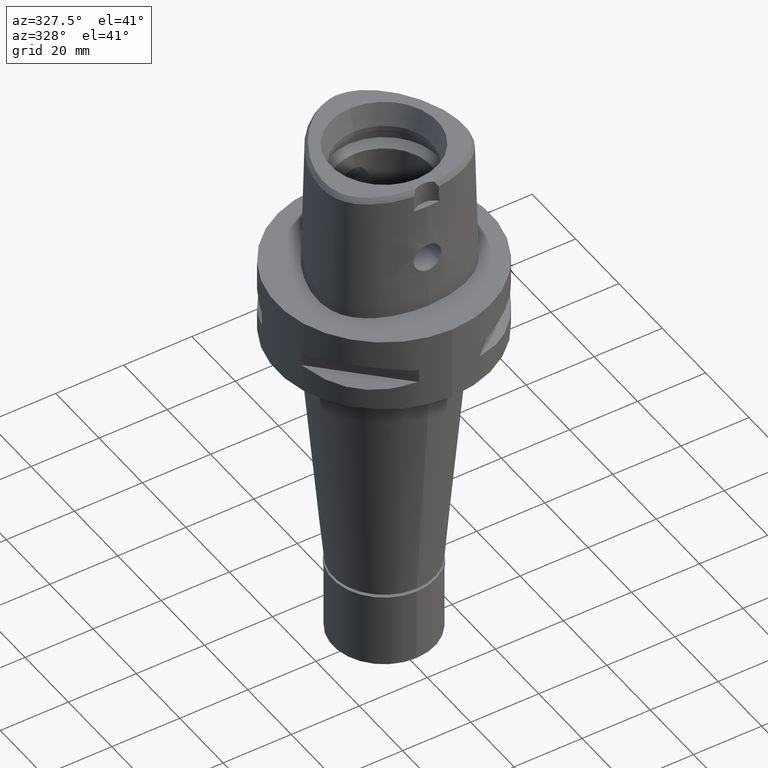
[diagram: clean part render]
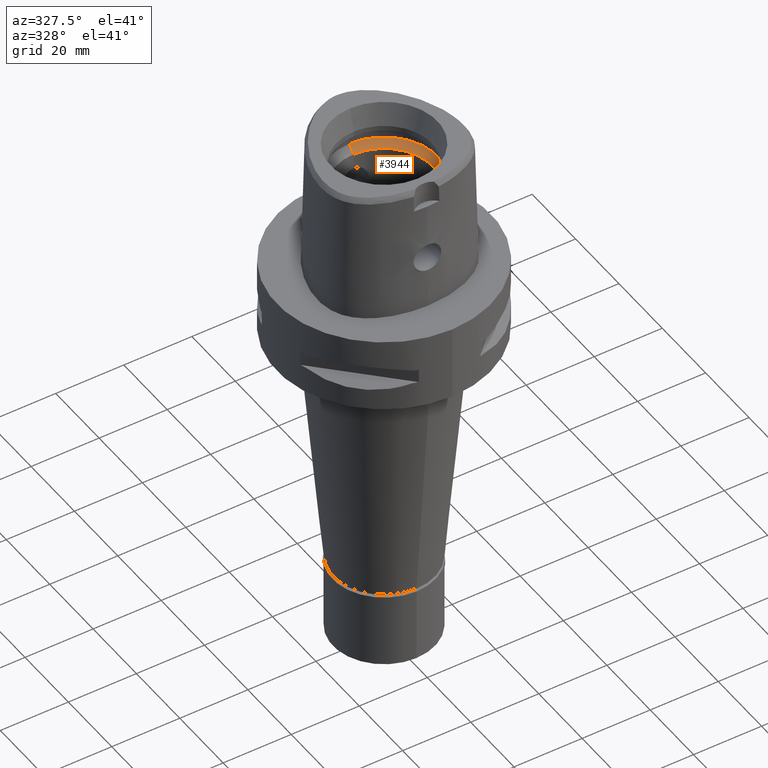
[diagram: same view with one face highlighted and labeled with its STEP entity id]
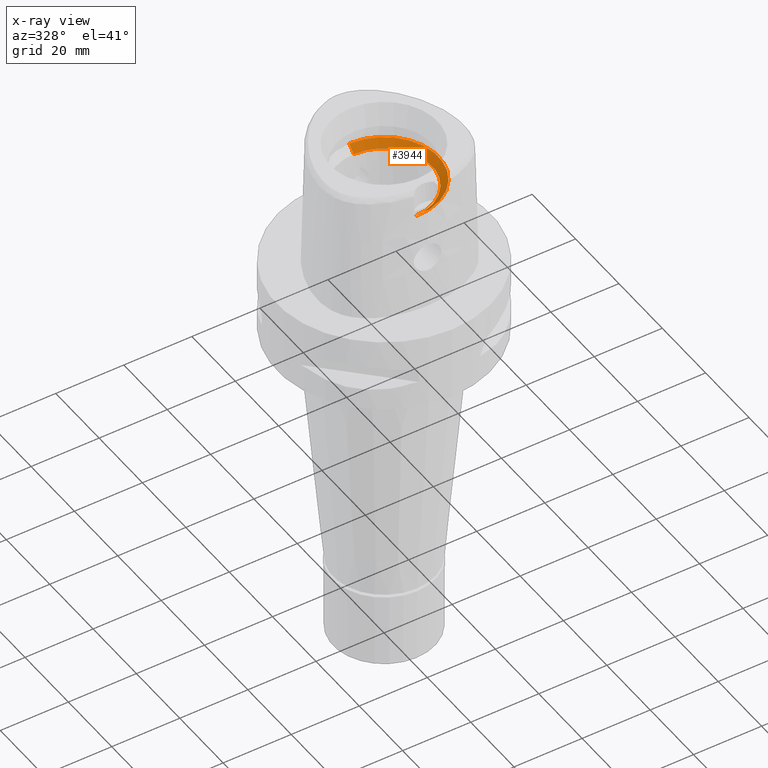
[diagram: x-ray of the same camera — body ghosted, the highlighted face saturated]
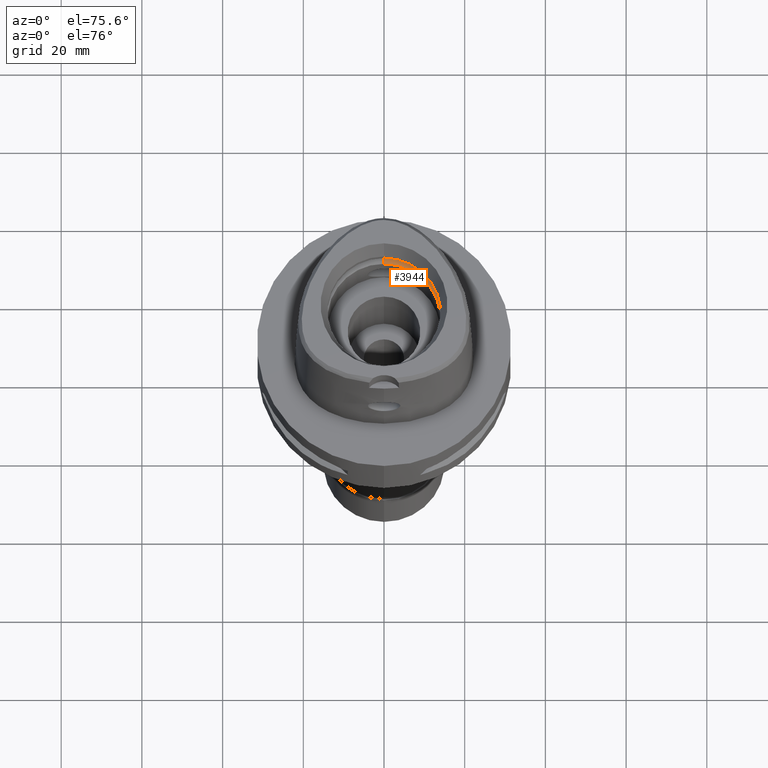
[diagram: same view with one face highlighted and labeled with its STEP entity id]
A machine part, auxiliary view. The second image highlights one B-rep face of the part: STEP entity #3944.
The next image is the same camera in x-ray: the body ghosted, the highlighted face saturated — about 0% of this face is hidden behind the body in this view.
A second angle (auxiliary view) of the same face is appended — the face is thin or edge-on in the first view.
In plain terms, the highlighted conical surface has half-angle 45 deg.
Its self-contained STEP definition (entity closure, byte-faithful):
#12 = CARTESIAN_POINT ( 'NONE',  ( 0.0000000000000000000, 0.0000000000000000000, 26.20000000000000284 ) ) ;
#110 = CARTESIAN_POINT ( 'NONE',  ( 0.0000000000000000000, -16.00000000000000000, 26.20000000000000284 ) ) ;
#136 = ORIENTED_EDGE ( 'NONE', *, *, #2299, .F. ) ;
#268 = EDGE_CURVE ( 'NONE', #609, #2056, #2274, .T. ) ;
#609 = VERTEX_POINT ( 'NONE', #790 ) ;
#661 = ORIENTED_EDGE ( 'NONE', *, *, #3048, .T. ) ;
#790 = CARTESIAN_POINT ( 'NONE',  ( 0.0000000000000000000, 14.00000000000000000, 24.19999999999999929 ) ) ;
#860 = CARTESIAN_POINT ( 'NONE',  ( 0.0000000000000000000, -14.00000000000000000, 24.19999999999999929 ) ) ;
#927 = CIRCLE ( 'NONE', #4064, 14.00000000000000000 ) ;
#1010 = VECTOR ( 'NONE', #1051, 1000.000000000000114 ) ;
#1051 = DIRECTION ( 'NONE',  ( 0.0000000000000000000, 0.7071067811865474617, 0.7071067811865474617 ) ) ;
#1109 = CARTESIAN_POINT ( 'NONE',  ( 0.0000000000000000000, -14.00000000000000000, 24.19999999999999929 ) ) ;
#1206 = LINE ( 'NONE', #860, #1508 ) ;
#1234 = DIRECTION ( 'NONE',  ( 0.0000000000000000000, -1.000000000000000000, 0.0000000000000000000 ) ) ;
#1508 = VECTOR ( 'NONE', #1600, 1000.000000000000114 ) ;
#1597 = DIRECTION ( 'NONE',  ( 0.0000000000000000000, 0.0000000000000000000, -1.000000000000000000 ) ) ;
#1598 = EDGE_LOOP ( 'NONE', ( #4578, #2961, #136, #661 ) ) ;
#1600 = DIRECTION ( 'NONE',  ( 0.0000000000000000000, -0.7071067811865474617, 0.7071067811865474617 ) ) ;
#1989 = DIRECTION ( 'NONE',  ( 0.0000000000000000000, 0.0000000000000000000, 1.000000000000000000 ) ) ;
#2016 = CARTESIAN_POINT ( 'NONE',  ( 0.0000000000000000000, 0.0000000000000000000, 24.19999999999999929 ) ) ;
#2056 = VERTEX_POINT ( 'NONE', #4324 ) ;
#2231 = FACE_OUTER_BOUND ( 'NONE', #1598, .T. ) ;
#2274 = LINE ( 'NONE', #2694, #1010 ) ;
#2284 = CARTESIAN_POINT ( 'NONE',  ( 0.0000000000000000000, 0.0000000000000000000, 25.19999999999999929 ) ) ;
#2299 = EDGE_CURVE ( 'NONE', #2597, #609, #927, .T. ) ;
#2597 = VERTEX_POINT ( 'NONE', #1109 ) ;
#2694 = CARTESIAN_POINT ( 'NONE',  ( 0.0000000000000000000, 14.00000000000000000, 24.19999999999999929 ) ) ;
#2961 = ORIENTED_EDGE ( 'NONE', *, *, #268, .F. ) ;
#3048 = EDGE_CURVE ( 'NONE', #2597, #4337, #1206, .T. ) ;
#3081 = DIRECTION ( 'NONE',  ( 0.0000000000000000000, 1.000000000000000000, 0.0000000000000000000 ) ) ;
#3164 = DIRECTION ( 'NONE',  ( 0.0000000000000000000, 1.000000000000000000, 0.0000000000000000000 ) ) ;
#3810 = DIRECTION ( 'NONE',  ( 0.0000000000000000000, 0.0000000000000000000, 1.000000000000000000 ) ) ;
#3944 = ADVANCED_FACE ( 'NONE', ( #2231 ), #4074, .F. ) ;
#4064 = AXIS2_PLACEMENT_3D ( 'NONE', #2016, #1989, #1234 ) ;
#4074 = CONICAL_SURFACE ( 'NONE', #4327, 15.00000000000000000, 0.7853981633972997312 ) ;
#4324 = CARTESIAN_POINT ( 'NONE',  ( 0.0000000000000000000, 16.00000000000000000, 26.20000000000000284 ) ) ;
#4327 = AXIS2_PLACEMENT_3D ( 'NONE', #2284, #3810, #3081 ) ;
#4337 = VERTEX_POINT ( 'NONE', #110 ) ;
#4372 = AXIS2_PLACEMENT_3D ( 'NONE', #12, #1597, #3164 ) ;
#4489 = EDGE_CURVE ( 'NONE', #2056, #4337, #4960, .T. ) ;
#4578 = ORIENTED_EDGE ( 'NONE', *, *, #4489, .F. ) ;
#4960 = CIRCLE ( 'NONE', #4372, 16.00000000000000000 ) ;